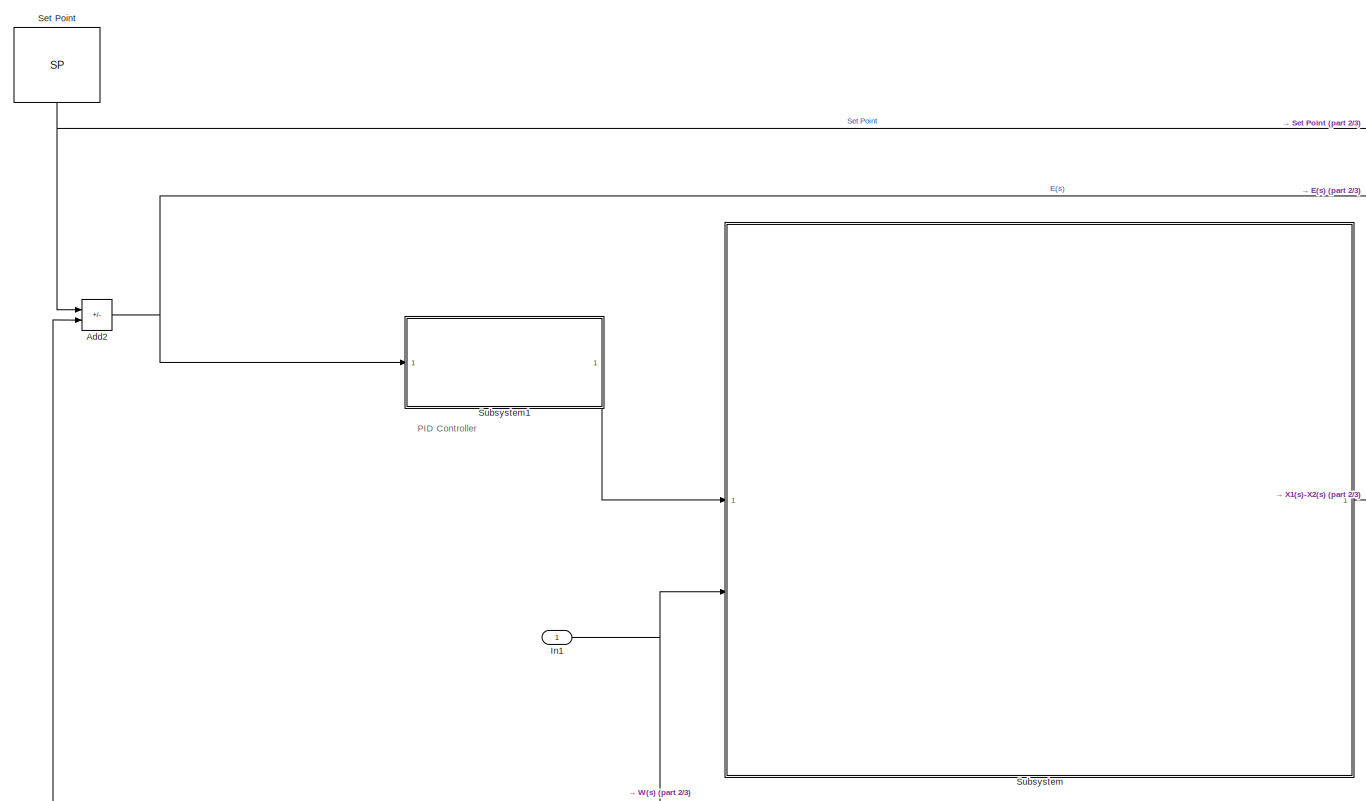
[diagram: root canvas - part 1/3, left side, full height]
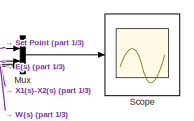
[diagram: root canvas - part 2/3, middle right region]
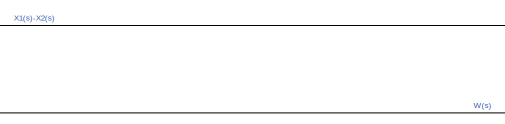
[diagram: root canvas - part 3/3, bottom center region]
MODEL slx_d5527f5b4398
KIND model
CONFIG AbsTol = auto
CONFIG EnableMultiTasking = off
CONFIG FixedStep = auto
CONFIG MaxStep = auto
CONFIG MinStep = auto
CONFIG RelTol = 1e-3
CONFIG SampleTimeConstraint = Unconstrained
CONFIG SolverName = ode23t
CONFIG StartTime = 0.0
CONFIG StopTime = 10
BLOCK [Sum] Add2
  IconShape = rectangular
  Inputs = +-
BLOCK [Inport] In1
BLOCK [Mux] Mux
  DisplayOption = bar
BLOCK [Scope] Scope
  ActiveDisplayYMaximum = 0.028257502423467348
  ActiveDisplayYMinimum = -0.027667801865854394
  DataLogging = on
  DataLoggingVariableName = Scope_Data
  Floating = off
  GraphicalSettings = {"Style":{"BackgroundColor":[0.12941176470588237,0.12941176470588237,0.12941176470588237],"AxesColor":[0.07058823529411765,0.07058823529411765,0.07058823529411765],"LabelsColor":[0.8509803921568627,0.8509803921568627,0.8509803921568627],"PreserveColors":false,"Visible":[true,false,true,false,true,true,true],"LineStyle":["-","-","-","-","-","-","-"],"LineWidth":[1.5,1.5,1.5,1.5,1.5,1.5,1.5],"BarWid...<+2626ch>
  MultipleDisplayCache = [{"MaxYLimMag":0.024572350192762507,"MaxYLimReal":0.028257502423467348,"MinYLimMag":0,"MinYLimReal":-0.027667801865854394,"PlotAsMagnitudePhase":false,"ShowGrid":true,"ShowLegend":true,"Title":"%<SignalLabel>","YLabel":""}]
  NumInputPorts = 1
  OpenAtSimulationStart = on
  ScopeFrameLocation = window
  ShowLegend = on
  WasSavedAsWebScope = on
  WindowPosition = [488.000000,222.000000,560.000000,420.000000,]
BLOCK [Constant] Set Point
  NameLocation = left
  Value = SP
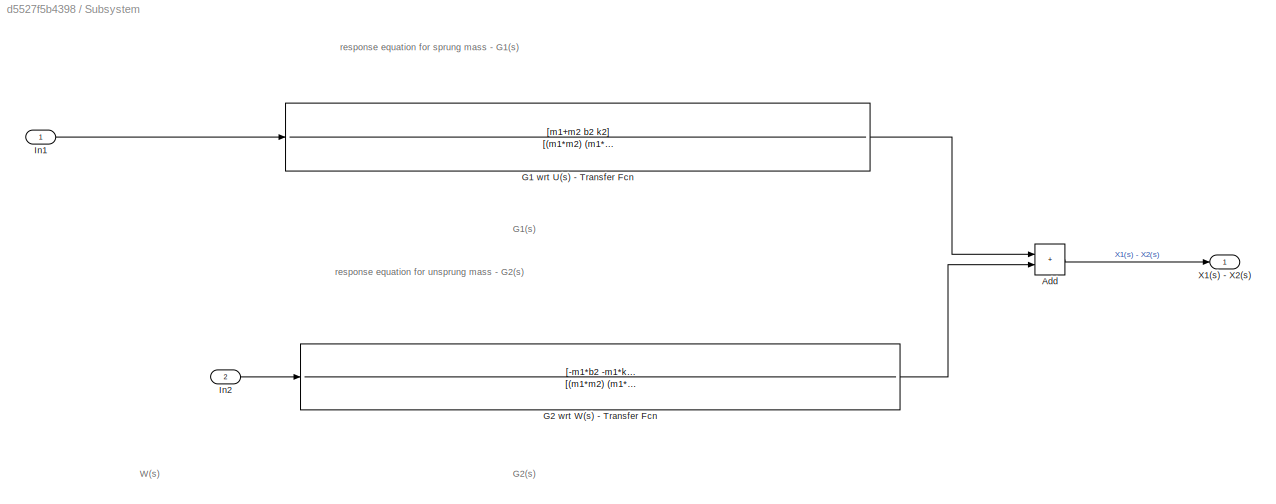
BLOCK [SubSystem] Subsystem
BLOCK [Sum] Subsystem/Add
  IconShape = rectangular
BLOCK [TransferFcn] Subsystem/G1 wrt U(s) - Transfer Fcn
  Denominator = [(m1*m2) (m1*(b1+b2))+(m2*b1) (m1*(k1+k2))+(m2*k1)+(b1*b2) (b1*k2)+(b2*k1) k1*k2]
  Numerator = [m1+m2 b2 k2]
BLOCK [TransferFcn] Subsystem/G2 wrt W(s) - Transfer Fcn
  Denominator = [(m1*m2) (m1*(b1+b2))+(m2*b1) (m1*(k1+k2))+(m2*k1)+(b1*b2) (b1*k2)+(b2*k1) k1*k2]
  Numerator = [-m1*b2 -m1*k2 0 0]
BLOCK [Inport] Subsystem/In1
BLOCK [Inport] Subsystem/In2
  Port = 2
BLOCK [Outport] Subsystem/X1(s) - X2(s)
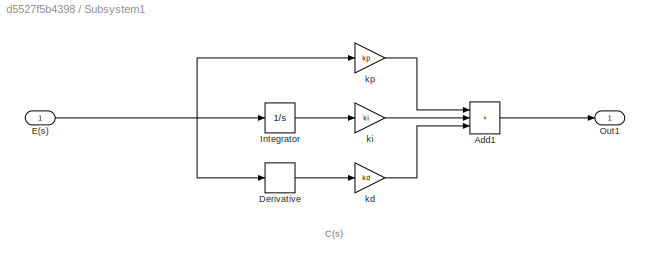
BLOCK [SubSystem] Subsystem1
BLOCK [Sum] Subsystem1/Add1
  IconShape = rectangular
  Inputs = +++
BLOCK [Derivative] Subsystem1/Derivative
BLOCK [Inport] Subsystem1/E(s)
BLOCK [Integrator] Subsystem1/Integrator
BLOCK [Outport] Subsystem1/Out1
BLOCK [Gain] Subsystem1/kd
  Gain = kd
BLOCK [Gain] Subsystem1/ki
  Gain = ki
BLOCK [Gain] Subsystem1/kp
  Gain = kp
ANNOTATION (root): PID Controller
ANNOTATION Subsystem: G1(s)
ANNOTATION Subsystem: G2(s)
ANNOTATION Subsystem: W(s)
ANNOTATION Subsystem: response equation for sprung mass - G1(s)
ANNOTATION Subsystem: response equation for unsprung mass - G2(s)
ANNOTATION Subsystem1: C(s)
NET Add2:1 -> Mux:2, Subsystem1:1
NET In1:1 -> Mux:4, Subsystem:2
LINE Mux:1 -> Scope:1
NET Set Point:1 -> Add2:1, Mux:1
LINE Subsystem/Add:1 -> Subsystem/X1(s) - X2(s):1
LINE Subsystem/G1 wrt U(s) - Transfer Fcn:1 -> Subsystem/Add:1
LINE Subsystem/G2 wrt W(s) - Transfer Fcn:1 -> Subsystem/Add:2
LINE Subsystem/In1:1 -> Subsystem/G1 wrt U(s) - Transfer Fcn:1
LINE Subsystem/In2:1 -> Subsystem/G2 wrt W(s) - Transfer Fcn:1
LINE Subsystem1/Add1:1 -> Subsystem1/Out1:1
LINE Subsystem1/Derivative:1 -> Subsystem1/kd:1
NET Subsystem1/E(s):1 -> Subsystem1/Derivative:1, Subsystem1/Integrator:1, Subsystem1/kp:1
LINE Subsystem1/Integrator:1 -> Subsystem1/ki:1
LINE Subsystem1/kd:1 -> Subsystem1/Add1:3
LINE Subsystem1/ki:1 -> Subsystem1/Add1:2
LINE Subsystem1/kp:1 -> Subsystem1/Add1:1
LINE Subsystem1:1 -> Subsystem:1
NET Subsystem:1 -> Add2:2, Mux:3
note: NET lines group one-source signal fan-out (src -> all destinations, sorted); 1:1 wires keep LINE
